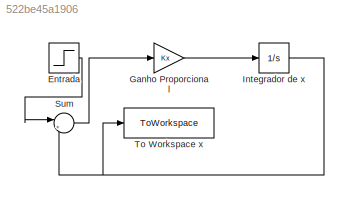
MODEL slx_522be45a1906
KIND model
CONFIG AbsTol = auto
CONFIG EnableMultiTasking = off
CONFIG FixedStep = auto
CONFIG MaxStep = auto
CONFIG MinStep = auto
CONFIG RelTol = 1e-3
CONFIG SampleTimeConstraint = Unconstrained
CONFIG SolverName = VariableStepAuto
CONFIG StartTime = 0.0
CONFIG StopTime = 2
BLOCK [Step] Entrada
  After = xr
  Before = x0
  SampleTime = 0
  Time = 0
BLOCK [Gain] Ganho Proporcional
  Gain = Kx
BLOCK [Integrator] Integrador de x
  Ports = [1, 1]
BLOCK [Sum] Sum
  Inputs = |+-
  Ports = [2, 1]
BLOCK [ToWorkspace] To Workspace x
  FixptAsFi = on
  MaxDataPoints = inf
  Ports = [1]
  SampleTime = -1
  SaveFormat = Structure With Time
  VariableName = x
LINE Entrada:1 -> Sum:1
LINE Ganho Proporcional:1 -> Integrador de x:1
NET Integrador de x:1 -> Sum:2, To Workspace x:1
LINE Sum:1 -> Ganho Proporcional:1
note: NET lines group one-source signal fan-out (src -> all destinations, sorted); 1:1 wires keep LINE
